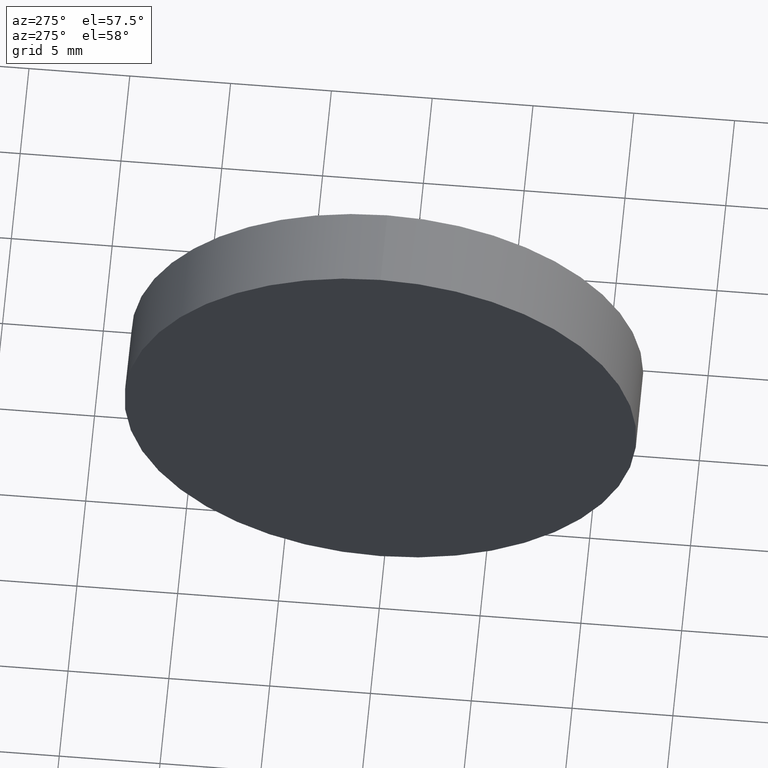
[diagram: clean part render]
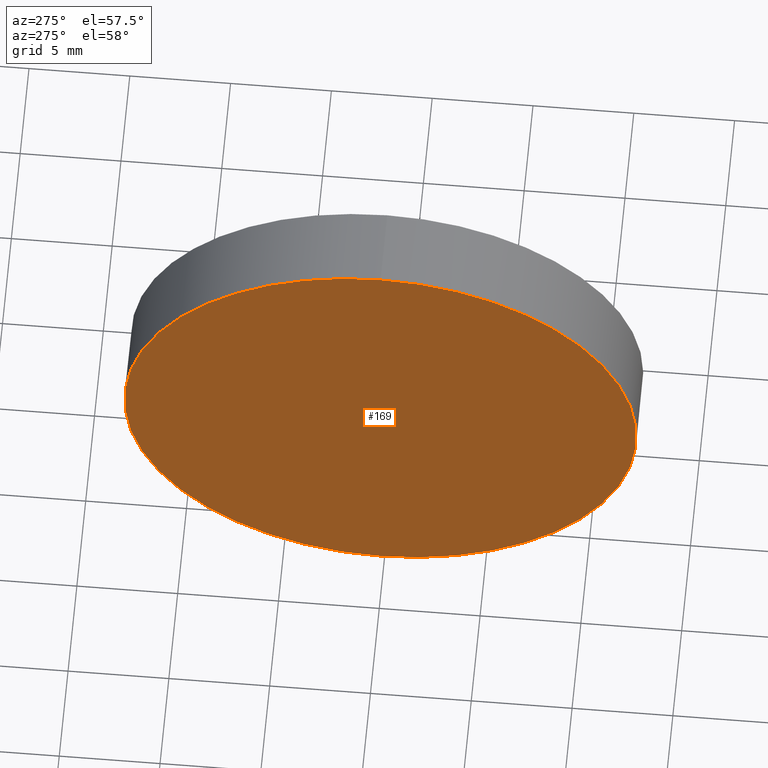
[diagram: same view with one face highlighted and labeled with its STEP entity id]
A machine part, auxiliary view. The second image highlights one B-rep face of the part: STEP entity #169.
In plain terms, the highlighted planar face has unit normal (1, 0, 0).
Its self-contained STEP definition (entity closure, byte-faithful):
#5 = AXIS2_PLACEMENT_3D ( 'NONE', #81, #8, #27 ) ;
#8 = DIRECTION ( 'NONE',  ( -1.000000000000000000, -0.0000000000000000000, -0.0000000000000000000 ) ) ;
#27 = DIRECTION ( 'NONE',  ( 0.0000000000000000000, 0.0000000000000000000, 1.000000000000000000 ) ) ;
#28 = CARTESIAN_POINT ( 'NONE',  ( 487.7125078025071600, 125.1785277586624500, 12.70000000000001700 ) ) ;
#60 = CARTESIAN_POINT ( 'NONE',  ( 487.7125078025071600, 125.1785277586624500, 0.0000000000000000000 ) ) ;
#67 = CARTESIAN_POINT ( 'NONE',  ( 487.7125078025071600, 125.1785277586624500, 0.0000000000000000000 ) ) ;
#71 = AXIS2_PLACEMENT_3D ( 'NONE', #67, #168, #109 ) ;
#76 = DIRECTION ( 'NONE',  ( 0.0000000000000000000, 0.0000000000000000000, 1.000000000000000000 ) ) ;
#81 = CARTESIAN_POINT ( 'NONE',  ( 487.7125078025071600, 125.1785277586624500, 0.0000000000000000000 ) ) ;
#107 = DIRECTION ( 'NONE',  ( -1.000000000000000000, -0.0000000000000000000, -0.0000000000000000000 ) ) ;
#109 = DIRECTION ( 'NONE',  ( 0.0000000000000000000, 0.0000000000000000000, -1.000000000000000000 ) ) ;
#114 = FACE_OUTER_BOUND ( 'NONE', #160, .T. ) ;
#118 = CARTESIAN_POINT ( 'NONE',  ( 487.7125078025071600, 125.1785277586624500, -12.70000000000001700 ) ) ;
#119 = AXIS2_PLACEMENT_3D ( 'NONE', #60, #107, #76 ) ;
#121 = CIRCLE ( 'NONE', #5, 12.70000000000001700 ) ;
#136 = EDGE_CURVE ( 'NONE', #146, #145, #173, .T. ) ;
#139 = EDGE_CURVE ( 'NONE', #145, #146, #121, .T. ) ;
#143 = PLANE ( 'NONE',  #71 ) ;
#145 = VERTEX_POINT ( 'NONE', #28 ) ;
#146 = VERTEX_POINT ( 'NONE', #118 ) ;
#160 = EDGE_LOOP ( 'NONE', ( #174, #184 ) ) ;
#168 = DIRECTION ( 'NONE',  ( 1.000000000000000000, 0.0000000000000000000, 0.0000000000000000000 ) ) ;
#169 = ADVANCED_FACE ( 'NONE', ( #114 ), #143, .F. ) ;
#173 = CIRCLE ( 'NONE', #119, 12.70000000000001700 ) ;
#174 = ORIENTED_EDGE ( 'NONE', *, *, #139, .T. ) ;
#184 = ORIENTED_EDGE ( 'NONE', *, *, #136, .T. ) ;